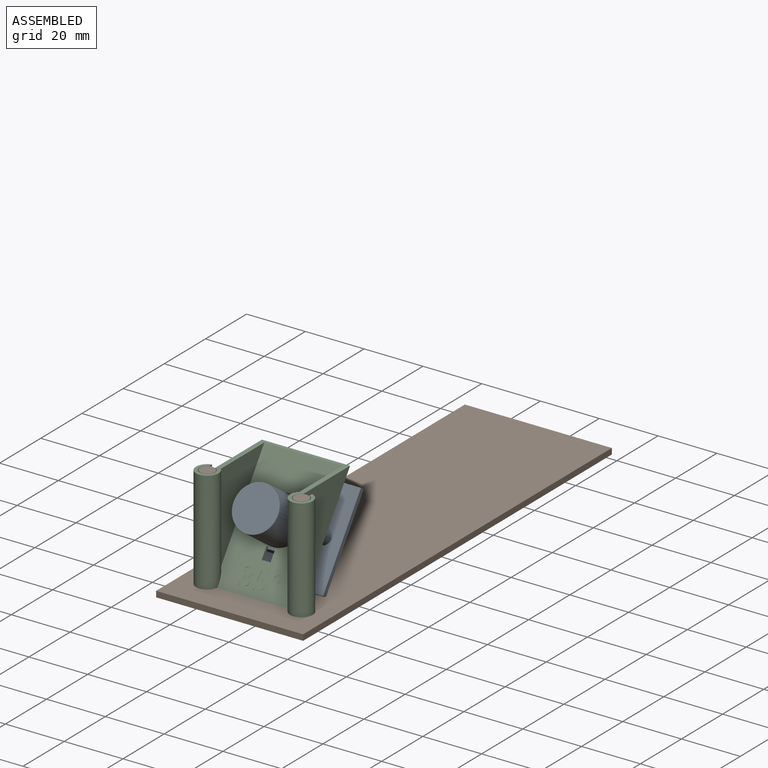
[diagram: assembled view]
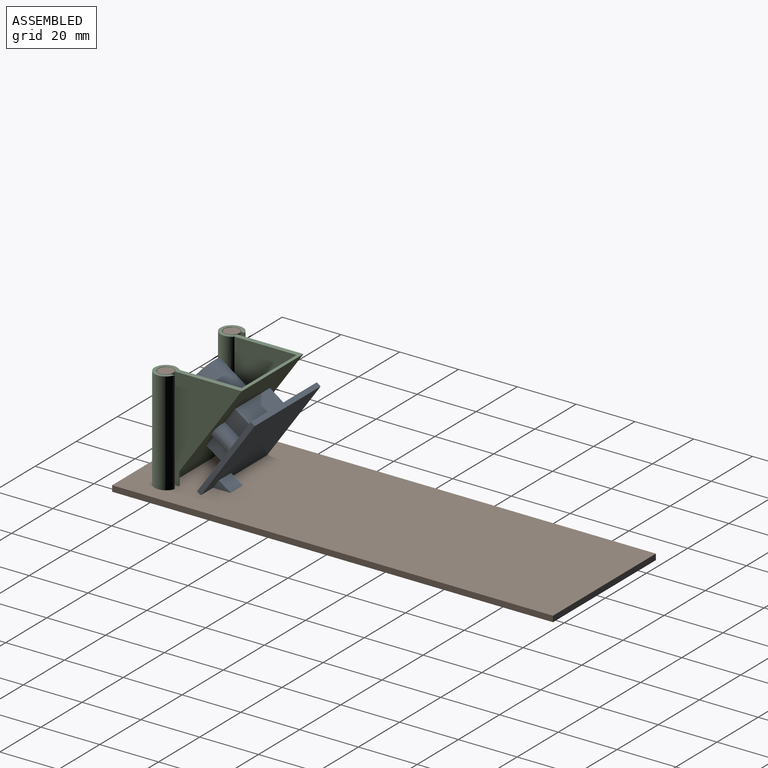
[diagram: assembled view, second angle]
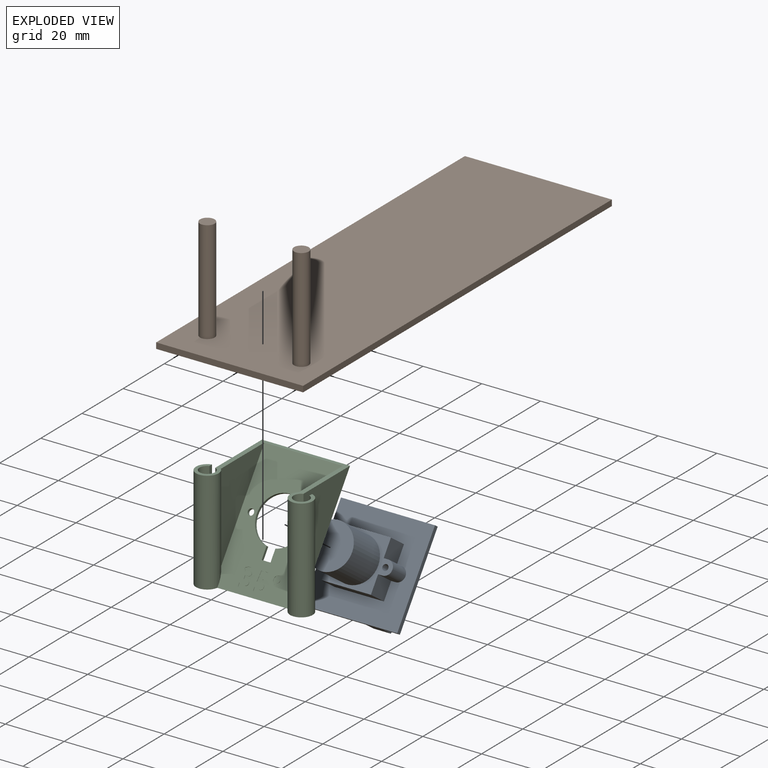
[diagram: exploded view]
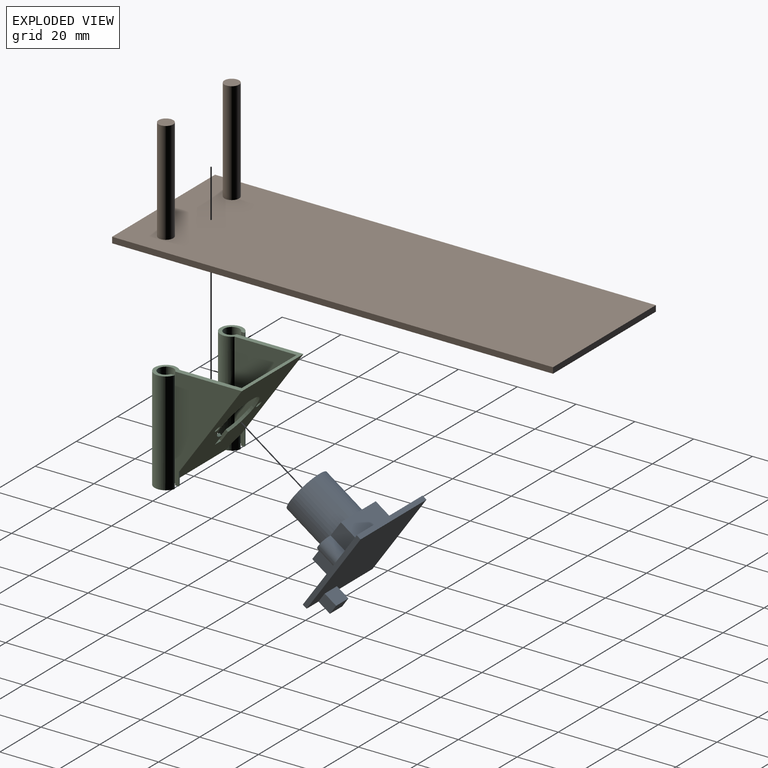
[diagram: exploded view, second angle]
ASSEMBLY  parts=3 mates=2
PART A: 29 faces, bbox 32x29.6x32 mm
  f0: plane 7.75x6.08mm, normal (-1,0,0), area 47.1mm2, adj f2,f14,f16,f25
  f1: plane 7.75x6.08mm, normal (1,0,0), area 47.1mm2, adj f2,f14,f16,f22
  f2: plane 32x32mm, normal (0,1,0), area 704mm2, adj f0,f1,f4,f5,f6,f7,f12,f13
  f3: plane 32x32mm, normal (0,-1,0), area 1002mm2, adj f4,f5,f6,f7,f8,f9,f10
  f4: plane 32x1.6mm, normal (1,0,0), area 51.2mm2, adj f2,f3,f5,f7
  f5: plane 32x1.6mm, normal (0,0,1), area 51.2mm2, adj f2,f3,f4,f6
  f6: plane 32x1.6mm, normal (-1,0,0), area 51.2mm2, adj f2,f3,f5,f7
  f7: plane 32x6.35mm, normal (0,0,-1), area 79.5mm2, adj f2,f3,f4,f6,f8,f10,f11
  f8: plane 4.75x3.7mm, normal (1,0,0), area 17.6mm2, adj f3,f7,f9,f11
  f9: plane 5.95x4.75mm, normal (0,0,1), area 28.3mm2, adj f3,f8,f10,f11
  f10: plane 4.75x3.7mm, normal (-1,0,0), area 17.6mm2, adj f3,f7,f9,f11
  f11: plane 5.95x3.7mm, normal (0,-1,0), area 22mm2, adj f7,f8,f9,f10
  f12: plane 16.95x7.75mm, normal (0,0,-1), area 131.4mm2, adj f2,f13,f15,f16
  f13: plane 7.75x6.08mm, normal (-1,0,0), area 47.1mm2, adj f2,f12,f16,f27
  f14: plane 16.95x7.75mm, normal (0,0,1), area 131.4mm2, adj f0,f1,f2,f16
  f15: plane 7.75x6.08mm, normal (1,0,0), area 47.1mm2, adj f2,f12,f16,f20
  f16: plane 24.8x16.95mm, normal (0,1,0), area 133.5mm2, adj f0,f1,f12,f13,f14,f15,f17,f19
  f17: cylinder r=7.58mm len=15.5mm, axis (0,-1,0), area 737.7mm2, adj f16,f18
  f18: plane 15.15x15.15mm, normal (0,1,0), area 180.3mm2, adj f17
  f19: cylinder r=2.4mm len=7.75mm, axis (0,-1,0), area 58.4mm2, adj f2,f16,f20,f22
  f20: plane 7.75x1.53mm, normal (0,0,-1), area 11.8mm2, adj f2,f15,f16,f19
  f21: cylinder r=1mm len=7.75mm, axis (0,-1,0), area 48.7mm2, adj f16,f23
  f22: plane 7.75x1.53mm, normal (0,0,1), area 11.8mm2, adj f1,f2,f16,f19
  f23: plane 2x2mm, normal (0,1,0), area 3.1mm2, adj f21
  f24: cylinder r=2.4mm len=7.75mm, axis (0,-1,0), area 58.4mm2, adj f2,f16,f25,f27
  f25: plane 7.75x1.53mm, normal (0,0,1), area 11.8mm2, adj f0,f2,f16,f24
  f26: cylinder r=1mm len=7.75mm, axis (0,-1,0), area 48.7mm2, adj f16,f28
  f27: plane 7.75x1.53mm, normal (0,0,-1), area 11.8mm2, adj f2,f13,f16,f24
  f28: plane 2x2mm, normal (0,1,0), area 3.1mm2, adj f26
PART B: 10 faces, bbox 50x150x37 mm
  f0: plane 150x2mm, normal (1,0,0), area 300mm2, adj f1,f3,f4,f5
  f1: plane 50x2mm, normal (0,1,0), area 100mm2, adj f0,f2,f4,f5
  f2: plane 150x2mm, normal (-1,0,0), area 300mm2, adj f1,f3,f4,f5
  f3: plane 50x2mm, normal (0,-1,0), area 100mm2, adj f0,f2,f4,f5
  f4: plane 150x50mm, normal (0,0,1), area 7460.7mm2, adj f0,f1,f2,f3,f6,f8
  f5: plane 150x50mm, normal (0,0,-1), area 7500mm2, adj f0,f1,f2,f3
  f6: cylinder r=2.5mm len=35mm, axis (0,0,-1), area 549.8mm2, adj f4,f7
  f7: plane 5x5mm, normal (0,0,1), area 19.6mm2, adj f6
  f8: cylinder r=2.5mm len=35mm, axis (0,0,-1), area 549.8mm2, adj f4,f9
  f9: plane 5x5mm, normal (0,0,1), area 19.6mm2, adj f8
PART C: 92 faces, bbox 39.7x29x35 mm
  f0: plane 35x30mm, normal (0,0.82,-0.57), area 1040.3mm2, adj f2,f5,f7,f8,f9,f11,f14,f17
  f1: plane 35x26.7mm, normal (0,-0.82,0.57), area 872.2mm2, adj f2,f3,f4,f8,f9,f15,f16,f17
  f2: cylinder r=8mm len=16mm, axis (0,-0.82,0.57), area 46.4mm2, adj f0,f1,f19,f21
  f3: cylinder r=3.85mm len=35mm, axis (0,0,-1), area 699.4mm2, adj f1,f8,f9,f10,f16
  f4: cylinder r=3.85mm len=35mm, axis (0,0,-1), area 699.4mm2, adj f1,f8,f9,f13,f15
  f5: cylinder r=3.85mm len=4.45mm, axis (0,0,-1), area 11.6mm2, adj f0,f9,f14
  f6: cylinder r=2.65mm len=35mm, axis (0,0,-1), area 511mm2, adj f8,f9,f10,f11
  f7: cylinder r=3.85mm len=4.45mm, axis (0,0,-1), area 11.6mm2, adj f0,f9,f11
  f8: plane 39.7x28.96mm, normal (0,0,1), area 148mm2, adj f0,f1,f3,f4,f6,f10,f11,f12
  f9: plane 39.7x7.57mm, normal (0,0,-1), area 73.3mm2, adj f0,f1,f3,f4,f5,f6,f7,f10
  f10: plane 35x1.26mm, normal (1,0,0), area 44.2mm2, adj f3,f6,f8,f9
  f11: plane 35x22.65mm, normal (-1,0,0), area 370.9mm2, adj f0,f6,f7,f8,f9
  f12: cylinder r=2.65mm len=35mm, axis (0,0,-1), area 511mm2, adj f8,f9,f13,f14
  f13: plane 35x1.26mm, normal (-1,0,0), area 44.2mm2, adj f4,f8,f9,f12
  f14: plane 35x22.65mm, normal (1,0,0), area 370.9mm2, adj f0,f5,f8,f9,f12
  f15: plane 30.15x21.11mm, normal (-1,0,0), area 318.3mm2, adj f1,f4,f8
  f16: plane 30.15x21.11mm, normal (1,0,0), area 318.3mm2, adj f1,f3,f8
  f17: cylinder r=1.05mm len=2.28mm, axis (0,-0.82,0.57), area 6.5mm2, adj f0,f1
  f18: cylinder r=1.05mm len=2.28mm, axis (0,-0.82,0.57), area 6.5mm2, adj f0,f1
  f19: plane 3.96x3.18mm, normal (1,0,0), area 4.1mm2, adj f0,f1,f2,f20
  f20: plane 3x0.81mm, normal (0,0.57,0.82), area 2.9mm2, adj f0,f1,f19,f21
  f21: plane 3.96x3.18mm, normal (-1,0,0), area 4.1mm2, adj f0,f1,f2,f20
  f22: extruded ~0.92x0.69mm, area 0.1mm2, adj f1,f23,f40,f41
  f23: extruded ~1.06x0.41mm, area 0.1mm2, adj f1,f22,f24,f41
  f24: extruded ~0.75x0.22mm, area 0.1mm2, adj f1,f23,f25,f41
  f25: extruded ~0.55x0.5mm, area 0.1mm2, adj f1,f24,f26,f41
  f26: extruded ~0.67x0.51mm, area 0.1mm2, adj f1,f25,f27,f41
  f27: extruded ~0.67x0.51mm, area 0.1mm2, adj f1,f26,f28,f41
  f28: extruded ~0.55x0.51mm, area 0.1mm2, adj f1,f27,f29,f41
  f29: extruded ~0.75x0.22mm, area 0.1mm2, adj f1,f28,f30,f41
  f30: extruded ~0.75x0.22mm, area 0.1mm2, adj f1,f29,f31,f41
  f31: extruded ~0.55x0.51mm, area 0.1mm2, adj f1,f30,f40,f41
  f32: extruded ~0.45x0.36mm, area 0.1mm2, adj f33,f39,f41,f42
  f33: extruded ~0.47x0.22mm, area 0.1mm2, adj f32,f34,f41,f42
  f34: extruded ~0.48x0.22mm, area 0.1mm2, adj f33,f35,f41,f42
  f35: extruded ~0.45x0.36mm, area 0.1mm2, adj f34,f36,f41,f42
  f36: extruded ~0.44x0.35mm, area 0.1mm2, adj f35,f37,f41,f42
  f37: extruded ~0.48x0.22mm, area 0.1mm2, adj f36,f38,f41,f42
  f38: extruded ~0.48x0.22mm, area 0.1mm2, adj f37,f39,f41,f42
  f39: extruded ~0.44x0.35mm, area 0.1mm2, adj f32,f38,f41,f42
  f40: extruded ~0.67x0.51mm, area 0.1mm2, adj f1,f22,f31,f41
  f41: plane 2.99x2.45mm, normal (0,-0.82,0.57), area 5.6mm2, adj f22,f23,f24,f25,f26,f27,f28,f29
  f42: plane 1.35x1.1mm, normal (0,-0.82,0.57), area 1.4mm2, adj f32,f33,f34,f35,f36,f37,f38,f39
  f43: extruded ~0.65x0.12mm, area 0.1mm2, adj f1,f44,f62,f63
  f44: plane 0.15x0.1mm, normal (0.2,-0.56,-0.8), area 0mm2, adj f1,f43,f45,f63
  f45: plane 1.07x0.79mm, normal (-1,0.05,0.08), area 0.1mm2, adj f1,f44,f46,f63
  f46: plane 2.26x0.08mm, normal (0,0.57,0.82), area 0.2mm2, adj f1,f45,f47,f63
  f47: plane 0.99x0.73mm, normal (-1,0,0), area 0.1mm2, adj f1,f46,f48,f63
  f48: plane 3.43x0.08mm, normal (0,-0.57,-0.82), area 0.3mm2, adj f1,f47,f49,f63
  f49: plane 2.7x1.93mm, normal (1,-0.04,-0.06), area 0.3mm2, adj f1,f48,f50,f63
  f50: plane 0.53x0.29mm, normal (0.47,0.51,0.72), area 0.1mm2, adj f1,f49,f51,f63
  f51: extruded ~0.45x0.14mm, area 0mm2, adj f1,f50,f52,f63
  f52: extruded ~0.51x0.11mm, area 0.1mm2, adj f1,f51,f53,f63
  f53: extruded ~1.27x0.84mm, area 0.2mm2, adj f1,f52,f54,f63
  f54: extruded ~1.23x0.88mm, area 0.2mm2, adj f1,f53,f55,f63
  f55: extruded ~0.86x0.15mm, area 0.1mm2, adj f1,f54,f56,f63
  f56: extruded ~0.8x0.3mm, area 0.1mm2, adj f1,f55,f57,f63
  f57: plane 1x0.75mm, normal (1,0,0), area 0.1mm2, adj f1,f56,f58,f63
  f58: extruded ~1.7x0.34mm, area 0.2mm2, adj f1,f57,f59,f63
  f59: extruded ~1.87x0.53mm, area 0.2mm2, adj f1,f58,f60,f63
  f60: extruded ~1.39x1.02mm, area 0.2mm2, adj f1,f59,f61,f63
  f61: extruded ~1.21x0.89mm, area 0.2mm2, adj f1,f60,f62,f63
  f62: extruded ~1.46x0.48mm, area 0.2mm2, adj f1,f43,f61,f63
  f63: plane 5.25x4.23mm, normal (0,-0.82,0.57), area 15.8mm2, adj f43,f44,f45,f46,f47,f48,f49,f50
  f64: extruded ~0.96x0.72mm, area 0.1mm2, adj f1,f65,f90,f91
  f65: extruded ~1.55x0.38mm, area 0.2mm2, adj f1,f64,f66,f91
  f66: extruded ~2.06x0.57mm, area 0.2mm2, adj f1,f65,f67,f91
  f67: plane 0.81x0.62mm, normal (0.83,0.32,0.46), area 0.1mm2, adj f1,f66,f68,f91
  f68: extruded ~0.72x0.35mm, area 0.1mm2, adj f1,f67,f69,f91
  f69: extruded ~0.63x0.14mm, area 0.1mm2, adj f1,f68,f70,f91
  f70: extruded ~0.9x0.65mm, area 0.1mm2, adj f1,f69,f71,f91
  f71: extruded ~0.6x0.46mm, area 0.1mm2, adj f1,f70,f72,f91
  f72: extruded ~1.08x0.22mm, area 0.1mm2, adj f1,f71,f73,f91
  f73: plane 0.49x0.08mm, normal (0,-0.57,-0.82), area 0mm2, adj f1,f72,f74,f91
  f74: plane 0.9x0.67mm, normal (1,0,0), area 0.1mm2, adj f1,f73,f75,f91
  f75: plane 0.48x0.08mm, normal (0,0.57,0.82), area 0mm2, adj f1,f74,f76,f91
  f76: extruded ~1.16x0.21mm, area 0.1mm2, adj f1,f75,f77,f91
  f77: extruded ~0.57x0.44mm, area 0.1mm2, adj f1,f76,f78,f91
  f78: extruded ~0.65x0.5mm, area 0.1mm2, adj f1,f77,f79,f91
  f79: extruded ~0.98x0.24mm, area 0.1mm2, adj f1,f78,f80,f91
  f80: extruded ~0.87x0.15mm, area 0.1mm2, adj f1,f79,f81,f91
  f81: extruded ~0.81x0.31mm, area 0.1mm2, adj f1,f80,f82,f91
  f82: plane 0.99x0.73mm, normal (1,0,0), area 0.1mm2, adj f1,f81,f83,f91
  f83: extruded ~1.83x0.34mm, area 0.2mm2, adj f1,f82,f84,f91
  f84: extruded ~1.89x0.47mm, area 0.2mm2, adj f1,f83,f85,f91
  f85: extruded ~1.22x0.9mm, area 0.2mm2, adj f1,f84,f86,f91
  f86: extruded ~0.87x0.65mm, area 0.1mm2, adj f1,f85,f87,f91
  f87: extruded ~1.16x0.44mm, area 0.1mm2, adj f1,f86,f88,f91
  f88: plane 0.1x0.08mm, normal (-1,0,0), area 0mm2, adj f1,f87,f89,f91
  f89: extruded ~1.01x0.53mm, area 0.1mm2, adj f1,f88,f90,f91
  f90: extruded ~0.88x0.66mm, area 0.1mm2, adj f1,f64,f89,f91
  f91: plane 5.33x4.38mm, normal (0,-0.82,0.57), area 15.1mm2, adj f64,f65,f66,f67,f68,f69,f70,f71
PLACE A rot(axis=(0,0.3,0.95),180deg) t=(6.65,-25.9,17.61)mm
PLACE B t=(6.65,17.36,1.78)mm
PLACE C t=(6.65,-45.64,3.78)mm
MATE fastened A.f19 <-> C.f17  axis (0,-0.82,0.57) through (-3.35,-32.25,22.05)mm
MATE fastened C.f3 <-> B.f6  axis (0,0,-1) through (-9.35,-45.64,3.78)mm
